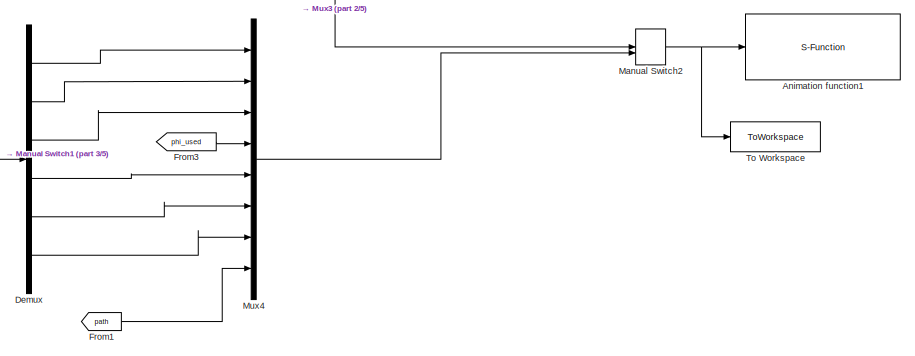
[diagram: root canvas - part 1/5, top right region]
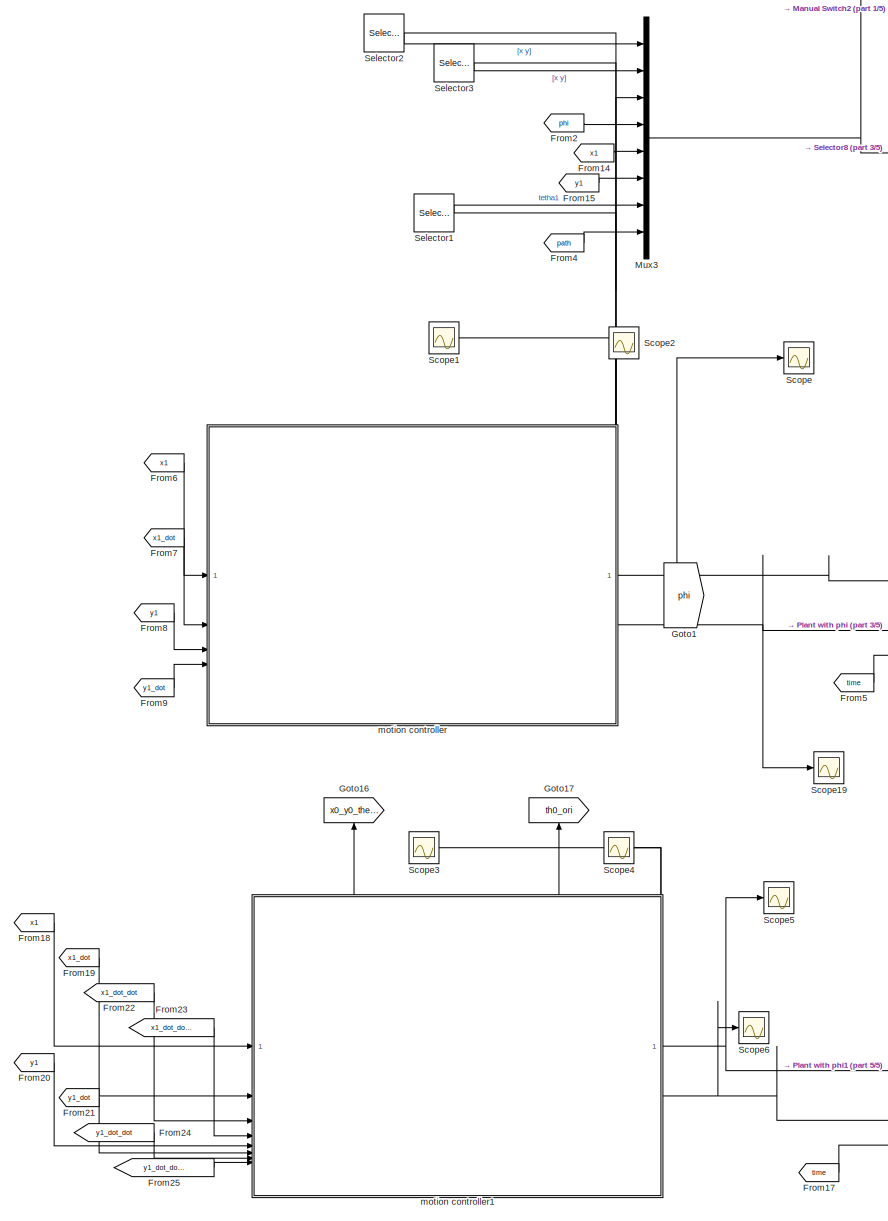
[diagram: root canvas - part 2/5, center side, full height]
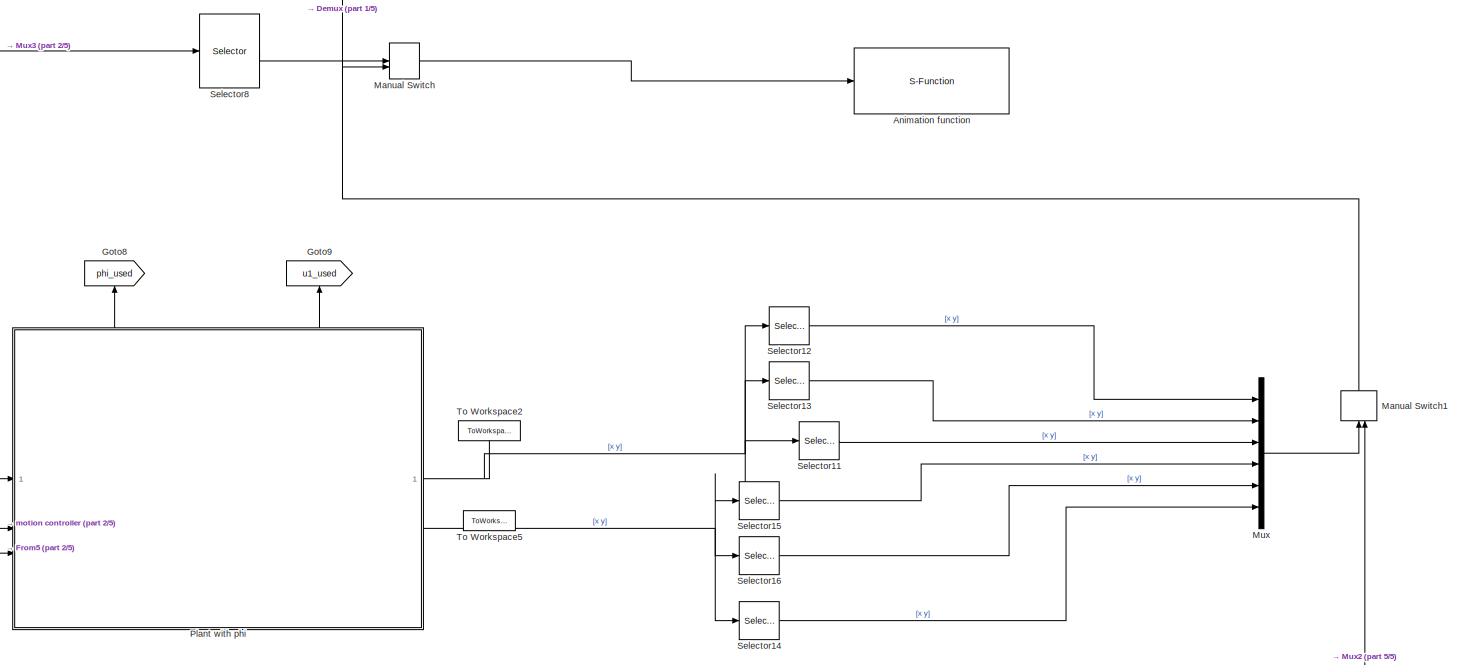
[diagram: root canvas - part 3/5, middle right region]
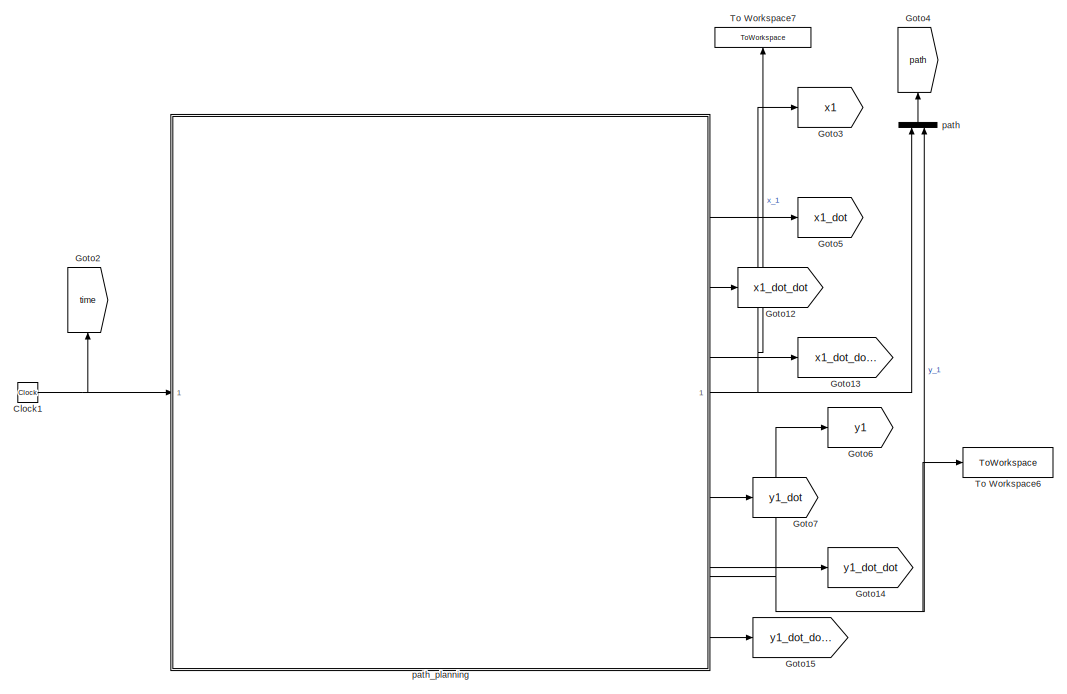
[diagram: root canvas - part 4/5, bottom left region]
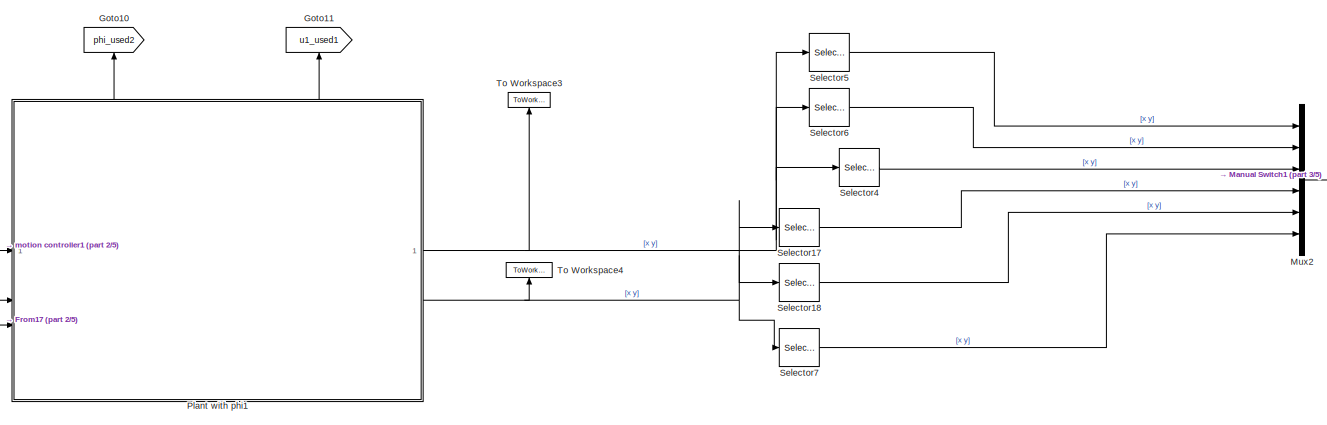
[diagram: root canvas - part 5/5, bottom right region]
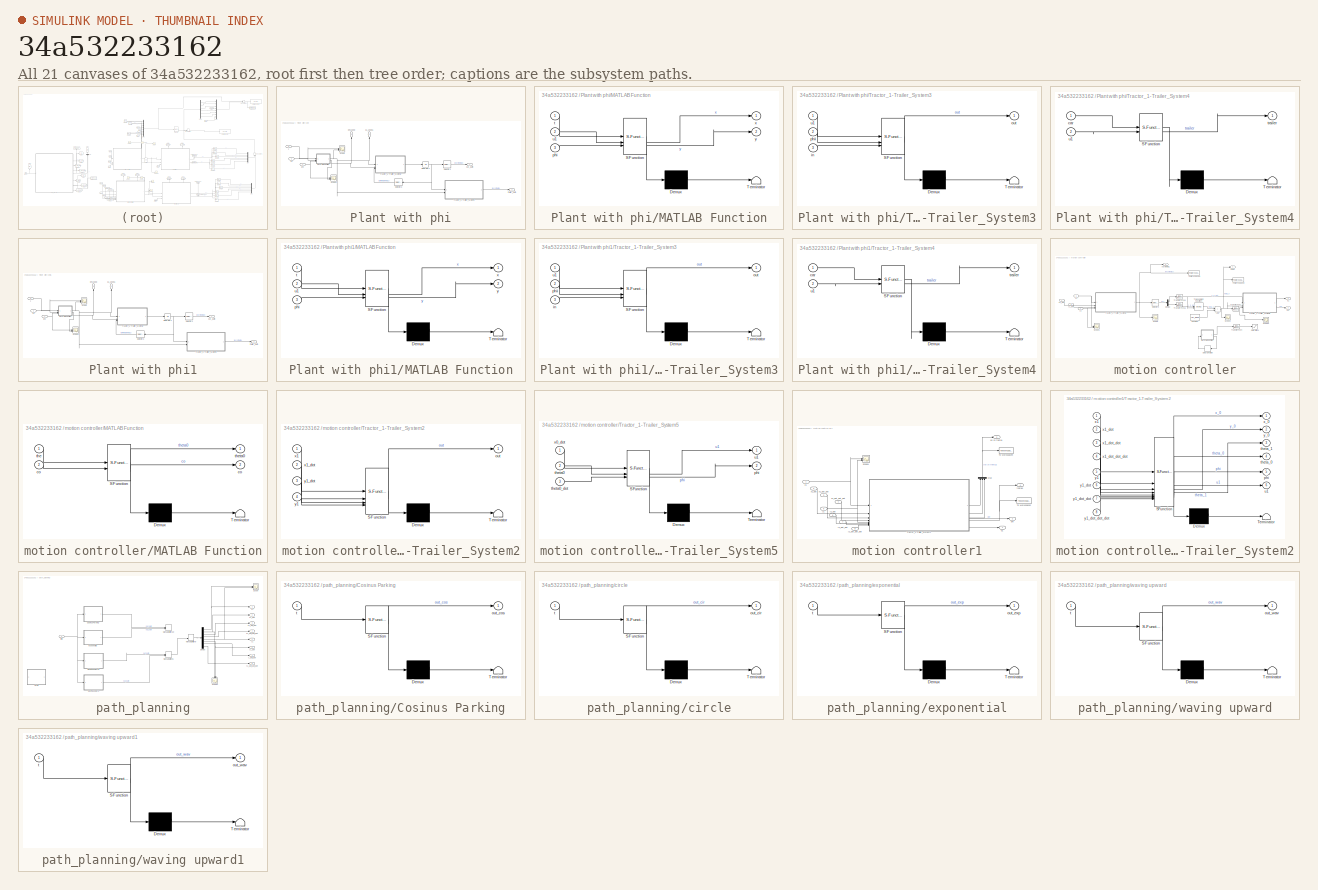
[diagram: thumbnail index - all 21 canvases of the model, root first then tree order]
MODEL slx_34a532233162
KIND model
CONFIG AbsTol = auto
CONFIG EnableMultiTasking = off
CONFIG FixedStep = 0.01
CONFIG InitFcn = d0 = 1;\nDt=0.01;\n\n%% if we want to "externalise" the trailer link from the car\na = 1.5;\n\n%% distance between car and trailer\nb = 2.5;\n\nd1=b;\n\ndelay = 0.01;\n\n%% delay with 0 signal before (to avoid instabilities before the "real" path following simulation")\ndel=2;\n\n%% delay to sub above to chose starting using real value\ndedel=1;\n\ny0 = 0;\nx0 = d1;\nco=0;\n\nthe_pre=0;\nthe_pre_pre=0;\nsdt=0.01;\n\nti_mod ...<+2035ch>
CONFIG MaxStep = auto
CONFIG MinStep = auto
CONFIG RelTol = 1e-3
CONFIG SampleTimeConstraint = Unconstrained
CONFIG SolverName = ode4
CONFIG StartTime = 0.01
CONFIG StopTime = 20
BLOCK [S-Function] Animation function
  Commented = on
  EnableBusSupport = off
  FunctionName = twowheeledrobotanim_trac
  SFcnIsStateOwnerBlock = off
  SFunctionDeploymentMode = off
BLOCK [S-Function] Animation function1
  EnableBusSupport = off
  FunctionName = carlikeanim_trailer
  SFcnIsStateOwnerBlock = off
  SFunctionDeploymentMode = off
BLOCK [Clock] Clock1
  Decimation = 1
BLOCK [Demux] Demux
  Outputs = 6
BLOCK [From] From1
  GotoTag = path
  NameLocation = top
BLOCK [From] From14
  GotoTag = x1
  NameLocation = top
BLOCK [From] From15
  GotoTag = y1
  NameLocation = top
BLOCK [From] From17
  GotoTag = time
  NameLocation = top
BLOCK [From] From18
  GotoTag = x1
  NameLocation = top
BLOCK [From] From19
  GotoTag = x1_dot
  NameLocation = top
BLOCK [From] From2
  GotoTag = phi
  NameLocation = top
BLOCK [From] From20
  GotoTag = y1
  NameLocation = top
BLOCK [From] From21
  GotoTag = y1_dot
  NameLocation = top
BLOCK [From] From22
  GotoTag = x1_dot_dot
  NameLocation = top
BLOCK [From] From23
  GotoTag = x1_dot_dot_dot
  NameLocation = top
BLOCK [From] From24
  GotoTag = y1_dot_dot
  NameLocation = top
BLOCK [From] From25
  GotoTag = y1_dot_dot_dot
  NameLocation = top
BLOCK [From] From3
  GotoTag = phi_used
  NameLocation = top
BLOCK [From] From4
  GotoTag = path
  NameLocation = top
BLOCK [From] From5
  GotoTag = time
  NameLocation = top
BLOCK [From] From6
  GotoTag = x1
  NameLocation = top
BLOCK [From] From7
  GotoTag = x1_dot
  NameLocation = top
BLOCK [From] From8
  GotoTag = y1
  NameLocation = top
BLOCK [From] From9
  GotoTag = y1_dot
  NameLocation = top
BLOCK [Goto] Goto1
  GotoTag = phi
  NameLocation = right
BLOCK [Goto] Goto10
  GotoTag = phi_used2
  NameLocation = right
BLOCK [Goto] Goto11
  GotoTag = u1_used1
  NameLocation = right
BLOCK [Goto] Goto12
  GotoTag = x1_dot_dot
BLOCK [Goto] Goto13
  GotoTag = x1_dot_dot_dot
BLOCK [Goto] Goto14
  GotoTag = y1_dot_dot
BLOCK [Goto] Goto15
  GotoTag = y1_dot_dot_dot
BLOCK [Goto] Goto16
  GotoTag = x0_y0_the1_ori
  NameLocation = right
BLOCK [Goto] Goto17
  GotoTag = th0_ori
  NameLocation = right
BLOCK [Goto] Goto2
  GotoTag = time
  NameLocation = right
BLOCK [Goto] Goto3
  GotoTag = x1
BLOCK [Goto] Goto4
  GotoTag = path
  NameLocation = right
BLOCK [Goto] Goto5
  GotoTag = x1_dot
BLOCK [Goto] Goto6
  GotoTag = y1
BLOCK [Goto] Goto7
  GotoTag = y1_dot
BLOCK [Goto] Goto8
  GotoTag = phi_used
  NameLocation = right
BLOCK [Goto] Goto9
  GotoTag = u1_used
  NameLocation = right
BLOCK [ManualSwitch] Manual Switch
  CurrentSetting = 0
BLOCK [ManualSwitch] Manual Switch1
  CurrentSetting = 0
  NameLocation = right
BLOCK [ManualSwitch] Manual Switch2
  CurrentSetting = 0
BLOCK [Mux] Mux
  DisplayOption = bar
  Inputs = 6
BLOCK [Mux] Mux2
  DisplayOption = bar
  Inputs = 6
BLOCK [Mux] Mux3
  DisplayOption = bar
  Inputs = 8
BLOCK [Mux] Mux4
  DisplayOption = bar
  Inputs = 8
BLOCK [SubSystem] Plant with phi
  PortSchema = {"entries":[{"content":{"sides":[{"content":{"connectorIds":["In1","In2","In3"]},"type":"ConnectorPlacement.EquallySpacedRectSide","uuid":"e7db4861-1c7b-44d0-8ae0-043891a2d65e"},{"content":{"connectorIds":["Out1","Out2"],"side":"RIGHT"},"type":"ConnectorPlacement.EquallySpacedRectSide","uuid":"ca6953ca-f3e9-441a-9b66-bf77f2babfba"},{"content":{"connectorIds":["Out3","Out4"],"side":"TOP"},"type":"C...<+272ch>
BLOCK [Integrator] Plant with phi/Integrator1
  InitialCondition = [x0_init;y0_init;theta0_init;theta1_init]
BLOCK [SubSystem] Plant with phi/MATLAB Function
  ErrorFcn = Stateflow.Translate.translate
  LibrarySourceBlock = simulink/User-Defined\nFunctions/MATLAB Function
  PermitHierarchicalResolution = ExplicitOnly
  SFBlockType = MATLAB Function
  TreatAsAtomicUnit = on
BLOCK [Demux] Plant with phi/MATLAB Function/ Demux 
  Outputs = 1
BLOCK [S-Function] Plant with phi/MATLAB Function/ SFunction 
  EnableBusSupport = on
  FunctionName = sf_sfun
  Parameters = dedel,del,for_back
  PortCounts = [3 3]
  SFcnIsStateOwnerBlock = off
  SFunctionDeploymentMode = off
  Tag = Stateflow S-Function 6
BLOCK [Terminator] Plant with phi/MATLAB Function/ Terminator 
BLOCK [Inport] Plant with phi/MATLAB Function/phi
  Port = 3
BLOCK [Inport] Plant with phi/MATLAB Function/t
BLOCK [Inport] Plant with phi/MATLAB Function/u1
  Port = 2
BLOCK [Outport] Plant with phi/MATLAB Function/x
BLOCK [Outport] Plant with phi/MATLAB Function/y
  Port = 2
BLOCK [Scope] Plant with phi/Scope
  Floating = off
  NumInputPorts = 2
  ScopeSpecificationString = Simulink.scopes.TimeScopeBlockCfg('CurrentConfiguration', extmgr.ConfigurationSet(extmgr.Configuration('Core','General UI',true),extmgr.Configuration('Core','Source UI',true),extmgr.Configuration('Sources','WiredSimulink',true,'DataLoggingVariableName','ScopeData3'),extmgr.Configuration('Visuals','Time Domain',true,'SerializedDisplays',{struct('MinYLimReal','-4.32676','MaxYLimReal','0.37381','YLab...<+1425ch>
BLOCK [Scope] Plant with phi/Scope1
  Floating = off
  NumInputPorts = 2
  ScopeSpecificationString = Simulink.scopes.TimeScopeBlockCfg('CurrentConfiguration', extmgr.ConfigurationSet(extmgr.Configuration('Core','General UI',true),extmgr.Configuration('Core','Source UI',true),extmgr.Configuration('Sources','WiredSimulink',true,'DataLoggingVariableName','ScopeData4'),extmgr.Configuration('Visuals','Time Domain',true,'SerializedDisplays',{struct('MinYLimReal','-3.92627','MaxYLimReal','3.92691','YLab...<+1454ch>
BLOCK [Selector] Plant with phi/Selector3
  IndexOptions = Index vector (dialog)
  Indices = [3 4]
  InputPortWidth = 4
  OutputSizes = 1
BLOCK [Selector] Plant with phi/Selector4
  IndexOptions = Index vector (dialog)
  Indices = [1 2 3]
  InputPortWidth = 4
  OutputSizes = 1
BLOCK [SubSystem] Plant with phi/Tractor_1-Trailer_System3
  ErrorFcn = Stateflow.Translate.translate
  PermitHierarchicalResolution = ExplicitOnly
  SFBlockType = MATLAB Function
  TreatAsAtomicUnit = on
BLOCK [Demux] Plant with phi/Tractor_1-Trailer_System3/ Demux 
  Outputs = 1
BLOCK [S-Function] Plant with phi/Tractor_1-Trailer_System3/ SFunction 
  EnableBusSupport = on
  FunctionName = sf_sfun
  Parameters = a,b,d0,d1
  PortCounts = [3 2]
  SFcnIsStateOwnerBlock = off
  SFunctionDeploymentMode = off
  Tag = Stateflow S-Function 4
BLOCK [Terminator] Plant with phi/Tractor_1-Trailer_System3/ Terminator 
BLOCK [Inport] Plant with phi/Tractor_1-Trailer_System3/in
  Port = 3
BLOCK [Outport] Plant with phi/Tractor_1-Trailer_System3/out
BLOCK [Inport] Plant with phi/Tractor_1-Trailer_System3/phii
  Port = 2
BLOCK [Inport] Plant with phi/Tractor_1-Trailer_System3/u1
BLOCK [SubSystem] Plant with phi/Tractor_1-Trailer_System4
  ErrorFcn = Stateflow.Translate.translate
  PermitHierarchicalResolution = ExplicitOnly
  SFBlockType = MATLAB Function
  TreatAsAtomicUnit = on
BLOCK [Demux] Plant with phi/Tractor_1-Trailer_System4/ Demux 
  Outputs = 1
BLOCK [S-Function] Plant with phi/Tractor_1-Trailer_System4/ SFunction 
  EnableBusSupport = on
  FunctionName = sf_sfun
  Parameters = d1,for_back
  PortCounts = [2 2]
  SFcnIsStateOwnerBlock = off
  SFunctionDeploymentMode = off
  Tag = Stateflow S-Function 5
BLOCK [Terminator] Plant with phi/Tractor_1-Trailer_System4/ Terminator 
BLOCK [Inport] Plant with phi/Tractor_1-Trailer_System4/car
BLOCK [Outport] Plant with phi/Tractor_1-Trailer_System4/trailer
BLOCK [Inport] Plant with phi/Tractor_1-Trailer_System4/u1
  Port = 2
BLOCK [Outport] Plant with phi/car_path
BLOCK [Inport] Plant with phi/phi
  Port = 2
BLOCK [Outport] Plant with phi/phi_used
  NameLocation = right
  Port = 3
BLOCK [Inport] Plant with phi/t
  Port = 3
BLOCK [Outport] Plant with phi/trailer_path
  Port = 2
BLOCK [Inport] Plant with phi/u1
BLOCK [Outport] Plant with phi/u1_used1
  NameLocation = right
  Port = 4
BLOCK [SubSystem] Plant with phi1
  PortSchema = {"entries":[{"content":{"sides":[{"content":{"connectorIds":["In1","In2","In3"]},"type":"ConnectorPlacement.EquallySpacedRectSide","uuid":"e7db4861-1c7b-44d0-8ae0-043891a2d65e"},{"content":{"connectorIds":["Out1","Out2"],"side":"RIGHT"},"type":"ConnectorPlacement.EquallySpacedRectSide","uuid":"ca6953ca-f3e9-441a-9b66-bf77f2babfba"},{"content":{"connectorIds":["Out3","Out4"],"side":"TOP"},"type":"C...<+272ch>
BLOCK [Integrator] Plant with phi1/Integrator1
  InitialCondition = [x0_init;y0_init;theta0_init;theta1_init]
BLOCK [SubSystem] Plant with phi1/MATLAB Function
  ErrorFcn = Stateflow.Translate.translate
  LibrarySourceBlock = simulink/User-Defined\nFunctions/MATLAB Function
  PermitHierarchicalResolution = ExplicitOnly
  SFBlockType = MATLAB Function
  TreatAsAtomicUnit = on
BLOCK [Demux] Plant with phi1/MATLAB Function/ Demux 
  Outputs = 1
BLOCK [S-Function] Plant with phi1/MATLAB Function/ SFunction 
  EnableBusSupport = on
  FunctionName = sf_sfun
  Parameters = dedel,del,for_back
  PortCounts = [3 3]
  SFcnIsStateOwnerBlock = off
  SFunctionDeploymentMode = off
  Tag = Stateflow S-Function 1
BLOCK [Terminator] Plant with phi1/MATLAB Function/ Terminator 
BLOCK [Inport] Plant with phi1/MATLAB Function/phi
  Port = 3
BLOCK [Inport] Plant with phi1/MATLAB Function/t
BLOCK [Inport] Plant with phi1/MATLAB Function/u1
  Port = 2
BLOCK [Outport] Plant with phi1/MATLAB Function/x
BLOCK [Outport] Plant with phi1/MATLAB Function/y
  Port = 2
BLOCK [Scope] Plant with phi1/Scope
  Floating = off
  NumInputPorts = 2
  ScopeSpecificationString = Simulink.scopes.TimeScopeBlockCfg('CurrentConfiguration', extmgr.ConfigurationSet(extmgr.Configuration('Core','General UI',true),extmgr.Configuration('Core','Source UI',true),extmgr.Configuration('Sources','WiredSimulink',true,'DataLoggingVariableName','ScopeData3'),extmgr.Configuration('Visuals','Time Domain',true,'SerializedDisplays',{struct('MinYLimReal','-4.32676','MaxYLimReal','0.37381','YLab...<+1425ch>
BLOCK [Scope] Plant with phi1/Scope1
  Floating = off
  NumInputPorts = 2
  ScopeSpecificationString = Simulink.scopes.TimeScopeBlockCfg('CurrentConfiguration', extmgr.ConfigurationSet(extmgr.Configuration('Core','General UI',true),extmgr.Configuration('Core','Source UI',true),extmgr.Configuration('Sources','WiredSimulink',true,'DataLoggingVariableName','ScopeData4'),extmgr.Configuration('Visuals','Time Domain',true,'SerializedDisplays',{struct('MinYLimReal','-3.92627','MaxYLimReal','3.92691','YLab...<+1454ch>
BLOCK [Selector] Plant with phi1/Selector3
  IndexOptions = Index vector (dialog)
  Indices = [3 4]
  InputPortWidth = 4
  OutputSizes = 1
BLOCK [Selector] Plant with phi1/Selector4
  IndexOptions = Index vector (dialog)
  Indices = [1 2 3]
  InputPortWidth = 4
  OutputSizes = 1
BLOCK [SubSystem] Plant with phi1/Tractor_1-Trailer_System3
  ErrorFcn = Stateflow.Translate.translate
  PermitHierarchicalResolution = ExplicitOnly
  SFBlockType = MATLAB Function
  TreatAsAtomicUnit = on
BLOCK [Demux] Plant with phi1/Tractor_1-Trailer_System3/ Demux 
  Outputs = 1
BLOCK [S-Function] Plant with phi1/Tractor_1-Trailer_System3/ SFunction 
  EnableBusSupport = on
  FunctionName = sf_sfun
  Parameters = a,b,d0,d1
  PortCounts = [3 2]
  SFcnIsStateOwnerBlock = off
  SFunctionDeploymentMode = off
  Tag = Stateflow S-Function 3
BLOCK [Terminator] Plant with phi1/Tractor_1-Trailer_System3/ Terminator 
BLOCK [Inport] Plant with phi1/Tractor_1-Trailer_System3/in
  Port = 3
BLOCK [Outport] Plant with phi1/Tractor_1-Trailer_System3/out
BLOCK [Inport] Plant with phi1/Tractor_1-Trailer_System3/phii
  Port = 2
BLOCK [Inport] Plant with phi1/Tractor_1-Trailer_System3/u1
BLOCK [SubSystem] Plant with phi1/Tractor_1-Trailer_System4
  ErrorFcn = Stateflow.Translate.translate
  PermitHierarchicalResolution = ExplicitOnly
  SFBlockType = MATLAB Function
  TreatAsAtomicUnit = on
BLOCK [Demux] Plant with phi1/Tractor_1-Trailer_System4/ Demux 
  Outputs = 1
BLOCK [S-Function] Plant with phi1/Tractor_1-Trailer_System4/ SFunction 
  EnableBusSupport = on
  FunctionName = sf_sfun
  Parameters = d1,for_back
  PortCounts = [2 2]
  SFcnIsStateOwnerBlock = off
  SFunctionDeploymentMode = off
  Tag = Stateflow S-Function 7
BLOCK [Terminator] Plant with phi1/Tractor_1-Trailer_System4/ Terminator 
BLOCK [Inport] Plant with phi1/Tractor_1-Trailer_System4/car
BLOCK [Outport] Plant with phi1/Tractor_1-Trailer_System4/trailer
BLOCK [Inport] Plant with phi1/Tractor_1-Trailer_System4/u1
  Port = 2
BLOCK [Outport] Plant with phi1/car_path
BLOCK [Inport] Plant with phi1/phi
  Port = 2
BLOCK [Outport] Plant with phi1/phi_used
  NameLocation = right
  Port = 3
BLOCK [Inport] Plant with phi1/t
  Port = 3
BLOCK [Outport] Plant with phi1/trailer_path
  Port = 2
BLOCK [Inport] Plant with phi1/u1
BLOCK [Outport] Plant with phi1/u1_used1
  NameLocation = right
  Port = 4
BLOCK [Scope] Scope
  Floating = off
  NumInputPorts = 1
  ScopeSpecificationString = Simulink.scopes.TimeScopeBlockCfg('CurrentConfiguration', extmgr.ConfigurationSet(extmgr.Configuration('Core','General UI',true),extmgr.Configuration('Core','Source UI',true),extmgr.Configuration('Sources','WiredSimulink',true,'DataLoggingVariableName','ScopeData1'),extmgr.Configuration('Visuals','Time Domain',true,'SerializedDisplays',{struct('MinYLimReal','0.82065','MaxYLimReal','3.05138','YLabe...<+1421ch>
BLOCK [Scope] Scope1
  Floating = off
  NumInputPorts = 1
  ScopeSpecificationString = Simulink.scopes.TimeScopeBlockCfg('CurrentConfiguration', extmgr.ConfigurationSet(extmgr.Configuration('Core','General UI',true),extmgr.Configuration('Core','Source UI',true),extmgr.Configuration('Sources','WiredSimulink',true,'DataLoggingVariableName','ScopeData1'),extmgr.Configuration('Visuals','Time Domain',true,'SerializedDisplays',{struct('MinYLimReal','-22.97516','MaxYLimReal','8.67955','YLa...<+1497ch>
BLOCK [Scope] Scope19
  Floating = off
  NumInputPorts = 1
  ScopeSpecificationString = Simulink.scopes.TimeScopeBlockCfg('CurrentConfiguration', extmgr.ConfigurationSet(extmgr.Configuration('Core','General UI',true),extmgr.Configuration('Core','Source UI',true),extmgr.Configuration('Sources','WiredSimulink',true,'DataLoggingVariableName','ScopeData6'),extmgr.Configuration('Visuals','Time Domain',true,'SerializedDisplays',{struct('MinYLimReal','-3.92522','MaxYLimReal','3.92679','YLab...<+1424ch>
BLOCK [Scope] Scope2
  Floating = off
  NumInputPorts = 1
  ScopeSpecificationString = Simulink.scopes.TimeScopeBlockCfg('CurrentConfiguration', extmgr.ConfigurationSet(extmgr.Configuration('Core','General UI',true),extmgr.Configuration('Core','Source UI',true),extmgr.Configuration('Sources','WiredSimulink',true,'DataLoggingVariableName','ScopeData10'),extmgr.Configuration('Visuals','Time Domain',true,'SerializedDisplays',{struct('MinYLimReal','-3.56558','MaxYLimReal','0.70053','YLa...<+1415ch>
BLOCK [Scope] Scope3
  Floating = off
  NumInputPorts = 1
  ScopeSpecificationString = Simulink.scopes.TimeScopeBlockCfg('CurrentConfiguration', extmgr.ConfigurationSet(extmgr.Configuration('Core','General UI',true),extmgr.Configuration('Core','Source UI',true),extmgr.Configuration('Sources','WiredSimulink',true,'DataLoggingVariableName','ScopeData1'),extmgr.Configuration('Visuals','Time Domain',true,'SerializedDisplays',{struct('MinYLimReal','-22.99458','MaxYLimReal','8.68171','YLa...<+1499ch>
BLOCK [Scope] Scope4
  Floating = off
  NumInputPorts = 1
  ScopeSpecificationString = Simulink.scopes.TimeScopeBlockCfg('CurrentConfiguration', extmgr.ConfigurationSet(extmgr.Configuration('Core','General UI',true),extmgr.Configuration('Core','Source UI',true),extmgr.Configuration('Sources','WiredSimulink',true,'DataLoggingVariableName','ScopeData2'),extmgr.Configuration('Visuals','Time Domain',true,'SerializedDisplays',{struct('MinYLimReal','-2.61444','MaxYLimReal','0.5949','YLabe...<+1408ch>
BLOCK [Scope] Scope5
  Floating = off
  NumInputPorts = 1
  ScopeSpecificationString = Simulink.scopes.TimeScopeBlockCfg('CurrentConfiguration', extmgr.ConfigurationSet(extmgr.Configuration('Core','General UI',true),extmgr.Configuration('Core','Source UI',true),extmgr.Configuration('Sources','WiredSimulink',true,'DataLoggingVariableName','ScopeData3'),extmgr.Configuration('Visuals','Time Domain',true,'SerializedDisplays',{struct('MinYLimReal','1.91634','MaxYLimReal','2.75293','YLabe...<+1403ch>
BLOCK [Scope] Scope6
  Floating = off
  NumInputPorts = 1
  ScopeSpecificationString = Simulink.scopes.TimeScopeBlockCfg('CurrentConfiguration', extmgr.ConfigurationSet(extmgr.Configuration('Core','General UI',true),extmgr.Configuration('Core','Source UI',true),extmgr.Configuration('Sources','WiredSimulink',true,'DataLoggingVariableName','ScopeData4'),extmgr.Configuration('Visuals','Time Domain',true,'SerializedDisplays',{struct('MinYLimReal','-3.27529','MaxYLimReal','0.6516','YLabe...<+1431ch>
BLOCK [Selector] Selector1
  IndexOptions = Index vector (dialog)
  Indices = [3]
  InputPortWidth = 3
  OutputSizes = 1
BLOCK [Selector] Selector11
  IndexOptions = Index vector (dialog)
  Indices = [3]
  InputPortWidth = 3
  OutputSizes = 1
BLOCK [Selector] Selector12
  IndexOptions = Index vector (dialog)
  Indices = [1]
  InputPortWidth = 3
  NameLocation = top
  OutputSizes = 1
BLOCK [Selector] Selector13
  IndexOptions = Index vector (dialog)
  Indices = [2]
  InputPortWidth = 3
  OutputSizes = 1
BLOCK [Selector] Selector14
  IndexOptions = Index vector (dialog)
  Indices = [3]
  InputPortWidth = 3
  OutputSizes = 1
BLOCK [Selector] Selector15
  IndexOptions = Index vector (dialog)
  Indices = [1]
  InputPortWidth = 3
  OutputSizes = 1
BLOCK [Selector] Selector16
  IndexOptions = Index vector (dialog)
  Indices = [2]
  InputPortWidth = 3
  OutputSizes = 1
BLOCK [Selector] Selector17
  IndexOptions = Index vector (dialog)
  Indices = [1]
  InputPortWidth = 3
  OutputSizes = 1
BLOCK [Selector] Selector18
  IndexOptions = Index vector (dialog)
  Indices = [2]
  InputPortWidth = 3
  OutputSizes = 1
BLOCK [Selector] Selector2
  IndexOptions = Index vector (dialog)
  Indices = [1]
  InputPortWidth = 3
  OutputSizes = 1
BLOCK [Selector] Selector3
  IndexOptions = Index vector (dialog)
  Indices = [2]
  InputPortWidth = 3
  OutputSizes = 1
BLOCK [Selector] Selector4
  IndexOptions = Index vector (dialog)
  Indices = [3]
  InputPortWidth = 3
  OutputSizes = 1
BLOCK [Selector] Selector5
  IndexOptions = Index vector (dialog)
  Indices = [1]
  InputPortWidth = 3
  OutputSizes = 1
BLOCK [Selector] Selector6
  IndexOptions = Index vector (dialog)
  Indices = [2]
  InputPortWidth = 3
  OutputSizes = 1
BLOCK [Selector] Selector7
  IndexOptions = Index vector (dialog)
  Indices = [3]
  InputPortWidth = 3
  OutputSizes = 1
BLOCK [Selector] Selector8
  IndexOptions = Index vector (dialog)
  Indices = [1 2 3 5 6 7]
  InputPortWidth = 9
  OutputSizes = 1
BLOCK [ToWorkspace] To Workspace
  FixptAsFi = on
  MaxDataPoints = inf
  SampleTime = -1
  SaveFormat = Timeseries
  VariableName = simout
BLOCK [ToWorkspace] To Workspace2
  FixptAsFi = on
  MaxDataPoints = inf
  NameLocation = left
  SampleTime = -1
  SaveFormat = Timeseries
  VariableName = tr_tt
BLOCK [ToWorkspace] To Workspace3
  FixptAsFi = on
  MaxDataPoints = inf
  NameLocation = right
  SampleTime = -1
  SaveFormat = Timeseries
  VariableName = tr_tt4
BLOCK [ToWorkspace] To Workspace4
  FixptAsFi = on
  MaxDataPoints = inf
  NameLocation = right
  SampleTime = -1
  SaveFormat = Timeseries
  VariableName = tr_tt5
BLOCK [ToWorkspace] To Workspace5
  FixptAsFi = on
  MaxDataPoints = inf
  NameLocation = right
  SampleTime = -1
  SaveFormat = Timeseries
  VariableName = tr_tt1
BLOCK [ToWorkspace] To Workspace6
  FixptAsFi = on
  MaxDataPoints = inf
  SampleTime = -1
  Save2DSignal = 2-D array (concatenate along first dimension)
  SaveFormat = Timeseries
  VariableName = y_ori_trailer
BLOCK [ToWorkspace] To Workspace7
  FixptAsFi = on
  MaxDataPoints = inf
  NameLocation = right
  SampleTime = -1
  Save2DSignal = 2-D array (concatenate along first dimension)
  SaveFormat = Timeseries
  VariableName = x_ori_trailer
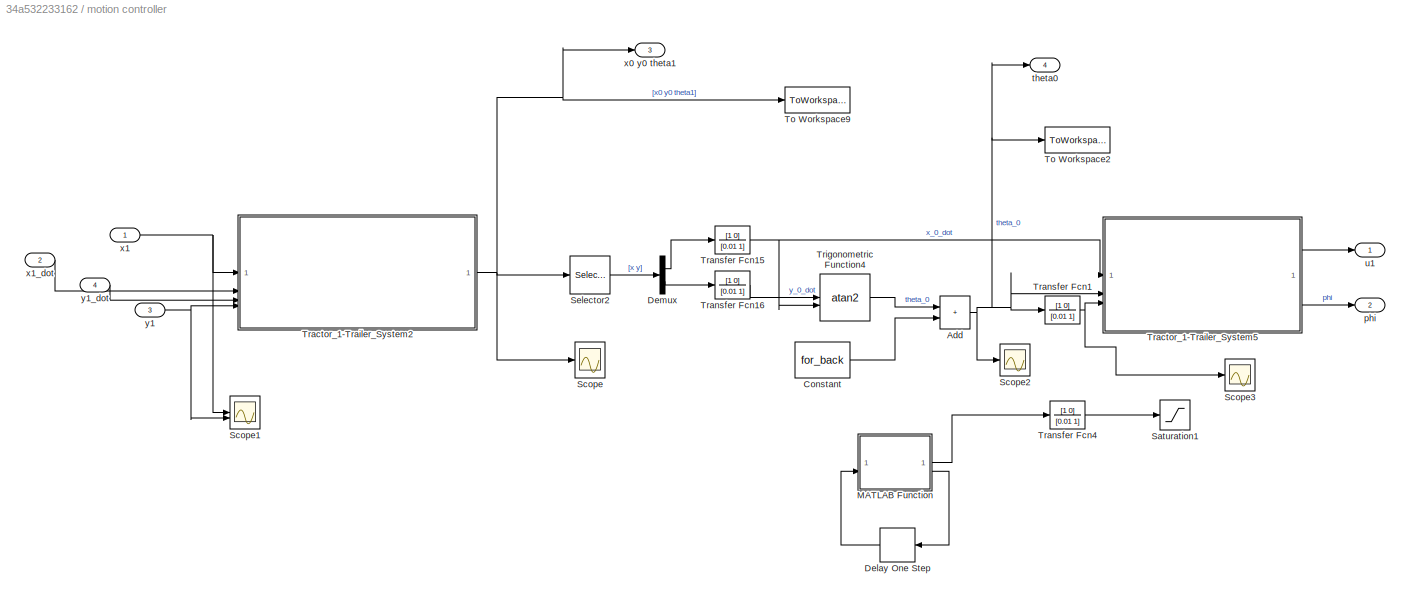
BLOCK [SubSystem] motion controller
  PortSchema = {"entries":[{"content":{"sides":[{"content":{"connectorIds":["In1","In2","In3","In4"]},"type":"ConnectorPlacement.EquallySpacedRectSide","uuid":"11bc3301-7ab6-4d38-8445-7de1e6050525"},{"content":{"connectorIds":["Out1","Out2"],"side":"RIGHT"},"type":"ConnectorPlacement.EquallySpacedRectSide","uuid":"374bee85-8743-45f2-a60a-268bfdaad2ec"},{"content":{"connectorIds":["Out3","Out4"],"side":"TOP"},"ty...<+278ch>
BLOCK [Sum] motion controller/Add
  IconShape = rectangular
BLOCK [Constant] motion controller/Constant
  Value = for_back
BLOCK [Delay] motion controller/Delay One Step
  Commented = on
  DelayLength = 1
  InputPortMap = u0
  NameLocation = top
BLOCK [Demux] motion controller/Demux
  Outputs = 2
BLOCK [SubSystem] motion controller/MATLAB Function
  Commented = on
  ErrorFcn = Stateflow.Translate.translate
  LibrarySourceBlock = simulink/User-Defined\nFunctions/MATLAB Function
  PermitHierarchicalResolution = ExplicitOnly
  SFBlockType = MATLAB Function
  TreatAsAtomicUnit = on
BLOCK [Demux] motion controller/MATLAB Function/ Demux 
  Outputs = 1
BLOCK [S-Function] motion controller/MATLAB Function/ SFunction 
  EnableBusSupport = on
  FunctionName = sf_sfun
  PortCounts = [2 3]
  SFcnIsStateOwnerBlock = off
  SFunctionDeploymentMode = off
  Tag = Stateflow S-Function 16
BLOCK [Terminator] motion controller/MATLAB Function/ Terminator 
BLOCK [Outport] motion controller/MATLAB Function/co
  Port = 2
BLOCK [Inport] motion controller/MATLAB Function/co 
  Port = 2
BLOCK [Inport] motion controller/MATLAB Function/the
BLOCK [Outport] motion controller/MATLAB Function/theta0
BLOCK [Saturate] motion controller/Saturation1
  Commented = on
  LowerLimit = -pi/4
  UpperLimit = pi/4
BLOCK [Scope] motion controller/Scope
  Floating = off
  NumInputPorts = 1
  ScopeSpecificationString = Simulink.scopes.TimeScopeBlockCfg('CurrentConfiguration', extmgr.ConfigurationSet(extmgr.Configuration('Core','General UI',true),extmgr.Configuration('Core','Source UI',true),extmgr.Configuration('Sources','WiredSimulink',true,'DataLoggingVariableName','ScopeData1'),extmgr.Configuration('Visuals','Time Domain',true,'SerializedDisplays',{struct('MinYLimReal','-6.28319','MaxYLimReal','25.13274','YLa...<+1486ch>
BLOCK [Scope] motion controller/Scope1
  Floating = off
  NumInputPorts = 2
  ScopeSpecificationString = Simulink.scopes.TimeScopeBlockCfg('CurrentConfiguration', extmgr.ConfigurationSet(extmgr.Configuration('Core','General UI',true),extmgr.Configuration('Core','Source UI',true),extmgr.Configuration('Sources','WiredSimulink',true,'DataLoggingVariableName','ScopeData2'),extmgr.Configuration('Visuals','Time Domain',true,'SerializedDisplays',{struct('MinYLimReal','-2.5','MaxYLimReal','22.5','YLabelReal'...<+1415ch>
BLOCK [Scope] motion controller/Scope2
  Floating = off
  NumInputPorts = 1
  ScopeSpecificationString = Simulink.scopes.TimeScopeBlockCfg('CurrentConfiguration', extmgr.ConfigurationSet(extmgr.Configuration('Core','General UI',true),extmgr.Configuration('Core','Source UI',true),extmgr.Configuration('Sources','WiredSimulink',true,'DataLoggingVariableName','ScopeData3'),extmgr.Configuration('Visuals','Time Domain',true,'SerializedDisplays',{struct('MinYLimReal','-0.65308','MaxYLimReal','5.87772','YLab...<+1420ch>
BLOCK [Scope] motion controller/Scope3
  Floating = off
  NumInputPorts = 1
  ScopeSpecificationString = Simulink.scopes.TimeScopeBlockCfg('CurrentConfiguration', extmgr.ConfigurationSet(extmgr.Configuration('Core','General UI',true),extmgr.Configuration('Core','Source UI',true),extmgr.Configuration('Sources','WiredSimulink',true,'DataLoggingVariableName','ScopeData4'),extmgr.Configuration('Visuals','Time Domain',true,'SerializedDisplays',{struct('MinYLimReal','-2.36013','MaxYLimReal','2.67437','YLab...<+1416ch>
BLOCK [Selector] motion controller/Selector2
  IndexOptions = Index vector (dialog)
  Indices = [1 2]
  InputPortWidth = 3
  OutputSizes = 1
BLOCK [ToWorkspace] motion controller/To Workspace2
  FixptAsFi = on
  MaxDataPoints = inf
  SampleTime = -1
  SaveFormat = Timeseries
  VariableName = tr_tt7
BLOCK [ToWorkspace] motion controller/To Workspace9
  FixptAsFi = on
  MaxDataPoints = inf
  SampleTime = -1
  SaveFormat = Timeseries
  VariableName = tr_tt2
BLOCK [SubSystem] motion controller/Tractor_1-Trailer_System2
  ErrorFcn = Stateflow.Translate.translate
  PermitHierarchicalResolution = ExplicitOnly
  SFBlockType = MATLAB Function
  TreatAsAtomicUnit = on
BLOCK [Demux] motion controller/Tractor_1-Trailer_System2/ Demux 
  Outputs = 1
BLOCK [S-Function] motion controller/Tractor_1-Trailer_System2/ SFunction 
  EnableBusSupport = on
  FunctionName = sf_sfun
  Parameters = d1,for_back
  PortCounts = [4 2]
  SFcnIsStateOwnerBlock = off
  SFunctionDeploymentMode = off
  Tag = Stateflow S-Function 11
BLOCK [Terminator] motion controller/Tractor_1-Trailer_System2/ Terminator 
BLOCK [Outport] motion controller/Tractor_1-Trailer_System2/out
BLOCK [Inport] motion controller/Tractor_1-Trailer_System2/x1
BLOCK [Inport] motion controller/Tractor_1-Trailer_System2/x1_dot
  Port = 2
BLOCK [Inport] motion controller/Tractor_1-Trailer_System2/y1
  Port = 4
BLOCK [Inport] motion controller/Tractor_1-Trailer_System2/y1_dot
  Port = 3
BLOCK [SubSystem] motion controller/Tractor_1-Trailer_System5
  ErrorFcn = Stateflow.Translate.translate
  PermitHierarchicalResolution = ExplicitOnly
  SFBlockType = MATLAB Function
  TreatAsAtomicUnit = on
BLOCK [Demux] motion controller/Tractor_1-Trailer_System5/ Demux 
  Outputs = 1
BLOCK [S-Function] motion controller/Tractor_1-Trailer_System5/ SFunction 
  EnableBusSupport = on
  FunctionName = sf_sfun
  Parameters = d0
  PortCounts = [3 3]
  SFcnIsStateOwnerBlock = off
  SFunctionDeploymentMode = off
  Tag = Stateflow S-Function 14
BLOCK [Terminator] motion controller/Tractor_1-Trailer_System5/ Terminator 
BLOCK [Outport] motion controller/Tractor_1-Trailer_System5/phi
  Port = 2
BLOCK [Inport] motion controller/Tractor_1-Trailer_System5/theta0
  Port = 2
BLOCK [Inport] motion controller/Tractor_1-Trailer_System5/theta0_dot
  Port = 3
BLOCK [Outport] motion controller/Tractor_1-Trailer_System5/u1
BLOCK [Inport] motion controller/Tractor_1-Trailer_System5/x0_dot
BLOCK [TransferFcn] motion controller/Transfer Fcn1
  Denominator = [0.01 1]
  Numerator = [1 0]
BLOCK [TransferFcn] motion controller/Transfer Fcn15
  Denominator = [0.01 1]
  Numerator = [1 0]
BLOCK [TransferFcn] motion controller/Transfer Fcn16
  Denominator = [0.01 1]
  Numerator = [1 0]
BLOCK [TransferFcn] motion controller/Transfer Fcn4
  Commented = on
  Denominator = [0.01 1]
  Numerator = [1 0]
BLOCK [Trigonometry] motion controller/Trigonometric Function4
  Operator = atan2
BLOCK [Outport] motion controller/phi
  Port = 2
BLOCK [Outport] motion controller/theta0
  Port = 4
BLOCK [Outport] motion controller/u1
BLOCK [Outport] motion controller/x0 y0 theta1
  Port = 3
BLOCK [Inport] motion controller/x1
BLOCK [Inport] motion controller/x1_dot
  Port = 2
BLOCK [Inport] motion controller/y1
  Port = 3
BLOCK [Inport] motion controller/y1_dot
  Port = 4
BLOCK [SubSystem] motion controller1
  PortSchema = {"entries":[{"content":{"sides":[{"content":{"connectorIds":["In1","In2","In3","In4","In5","In6","In7","In8"]},"type":"ConnectorPlacement.EquallySpacedRectSide","uuid":"11bc3301-7ab6-4d38-8445-7de1e6050525"},{"content":{"connectorIds":["Out1","Out2"],"side":"RIGHT"},"type":"ConnectorPlacement.EquallySpacedRectSide","uuid":"374bee85-8743-45f2-a60a-268bfdaad2ec"},{"content":{"connectorIds":["Out3","...<+302ch>
BLOCK [Mux] motion controller1/Mux
  DisplayOption = bar
  Inputs = 3
  NameLocation = right
BLOCK [Scope] motion controller1/Scope1
  Floating = off
  NumInputPorts = 2
  ScopeSpecificationString = Simulink.scopes.TimeScopeBlockCfg('CurrentConfiguration', extmgr.ConfigurationSet(extmgr.Configuration('Core','General UI',true),extmgr.Configuration('Core','Source UI',true),extmgr.Configuration('Sources','WiredSimulink',true,'DataLoggingVariableName','ScopeData2'),extmgr.Configuration('Visuals','Time Domain',true,'SerializedDisplays',{struct('MinYLimReal','-2.5','MaxYLimReal','22.5','YLabelReal'...<+1415ch>
BLOCK [ToWorkspace] motion controller1/To Workspace2
  FixptAsFi = on
  MaxDataPoints = inf
  SampleTime = -1
  SaveFormat = Timeseries
  VariableName = tr_th0
BLOCK [ToWorkspace] motion controller1/To Workspace9
  FixptAsFi = on
  MaxDataPoints = inf
  SampleTime = -1
  SaveFormat = Timeseries
  VariableName = tr_x0_y0_th1
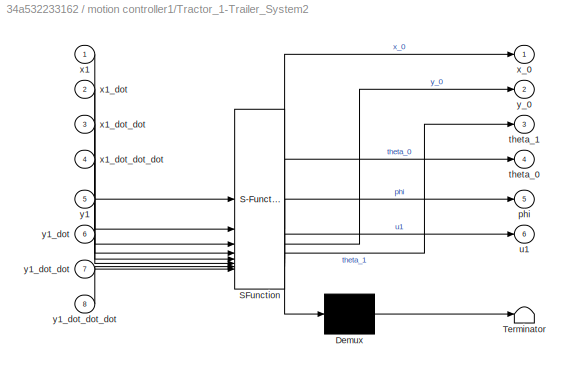
BLOCK [SubSystem] motion controller1/Tractor_1-Trailer_System2
  ErrorFcn = Stateflow.Translate.translate
  PermitHierarchicalResolution = ExplicitOnly
  SFBlockType = MATLAB Function
  TreatAsAtomicUnit = on
BLOCK [Demux] motion controller1/Tractor_1-Trailer_System2/ Demux 
  Outputs = 1
BLOCK [S-Function] motion controller1/Tractor_1-Trailer_System2/ SFunction 
  EnableBusSupport = on
  FunctionName = sf_sfun
  Parameters = d0,d1,for_back
  PortCounts = [8 7]
  SFcnIsStateOwnerBlock = off
  SFunctionDeploymentMode = off
  Tag = Stateflow S-Function 2
BLOCK [Terminator] motion controller1/Tractor_1-Trailer_System2/ Terminator 
BLOCK [Outport] motion controller1/Tractor_1-Trailer_System2/phi
  Port = 5
BLOCK [Outport] motion controller1/Tractor_1-Trailer_System2/theta_0
  Port = 4
BLOCK [Outport] motion controller1/Tractor_1-Trailer_System2/theta_1
  Port = 3
BLOCK [Outport] motion controller1/Tractor_1-Trailer_System2/u1
  Port = 6
BLOCK [Inport] motion controller1/Tractor_1-Trailer_System2/x1
BLOCK [Inport] motion controller1/Tractor_1-Trailer_System2/x1_dot
  Port = 2
BLOCK [Inport] motion controller1/Tractor_1-Trailer_System2/x1_dot_dot
  Port = 3
BLOCK [Inport] motion controller1/Tractor_1-Trailer_System2/x1_dot_dot_dot
  Port = 4
BLOCK [Outport] motion controller1/Tractor_1-Trailer_System2/x_0
BLOCK [Inport] motion controller1/Tractor_1-Trailer_System2/y1
  Port = 5
BLOCK [Inport] motion controller1/Tractor_1-Trailer_System2/y1_dot
  Port = 6
BLOCK [Inport] motion controller1/Tractor_1-Trailer_System2/y1_dot_dot
  Port = 7
BLOCK [Inport] motion controller1/Tractor_1-Trailer_System2/y1_dot_dot_dot
  Port = 8
BLOCK [Outport] motion controller1/Tractor_1-Trailer_System2/y_0
  Port = 2
BLOCK [Outport] motion controller1/phi
  Port = 2
BLOCK [Outport] motion controller1/theta0
  Port = 4
BLOCK [Outport] motion controller1/u1
BLOCK [Outport] motion controller1/x0 y0 theta1
  Port = 3
BLOCK [Inport] motion controller1/x1
BLOCK [Inport] motion controller1/x1_dot
  Port = 2
BLOCK [Inport] motion controller1/x1_dot_dot
  Port = 3
BLOCK [Inport] motion controller1/x1_dot_dot_dot
  Port = 4
BLOCK [Inport] motion controller1/y1
  Port = 5
BLOCK [Inport] motion controller1/y1_dot
  Port = 6
BLOCK [Inport] motion controller1/y1_dot_dot
  Port = 7
BLOCK [Inport] motion controller1/y1_dot_dot_dot
  Port = 8
BLOCK [Mux] path
  DisplayOption = bar
  Inputs = 2
  NameLocation = right
BLOCK [SubSystem] path_planning
BLOCK [SubSystem] path_planning/Cosinus Parking
  ErrorFcn = Stateflow.Translate.translate
  LibrarySourceBlock = simulink/User-Defined\nFunctions/MATLAB Function
  PermitHierarchicalResolution = ExplicitOnly
  SFBlockType = MATLAB Function
  TreatAsAtomicUnit = on
BLOCK [Demux] path_planning/Cosinus Parking/ Demux 
  Outputs = 1
BLOCK [S-Function] path_planning/Cosinus Parking/ SFunction 
  EnableBusSupport = on
  FunctionName = sf_sfun
  PortCounts = [1 2]
  SFcnIsStateOwnerBlock = off
  SFunctionDeploymentMode = off
  Tag = Stateflow S-Function 13
BLOCK [Terminator] path_planning/Cosinus Parking/ Terminator 
BLOCK [Outport] path_planning/Cosinus Parking/out_cos
BLOCK [Inport] path_planning/Cosinus Parking/t
BLOCK [Demux] path_planning/Demux
  Outputs = 8
BLOCK [ManualSwitch] path_planning/Manual Switch10
BLOCK [ManualSwitch] path_planning/Manual Switch6
  CurrentSetting = 0
BLOCK [ManualSwitch] path_planning/Manual Switch9
  CurrentSetting = 0
BLOCK [Scope] path_planning/Scope
  Floating = off
  NumInputPorts = 2
  ScopeSpecificationString = Simulink.scopes.TimeScopeBlockCfg('CurrentConfiguration', extmgr.ConfigurationSet(extmgr.Configuration('Core','General UI',true),extmgr.Configuration('Core','Source UI',true),extmgr.Configuration('Sources','WiredSimulink',true,'DataLoggingVariableName','ScopeData1'),extmgr.Configuration('Visuals','Time Domain',true,'SerializedDisplays',{struct('MinYLimReal','-22.04683','MaxYLimReal','7.55095','YLa...<+1450ch>
BLOCK [Scope] path_planning/Scope1
  Floating = off
  NameLocation = left
  NumInputPorts = 2
  ScopeSpecificationString = Simulink.scopes.TimeScopeBlockCfg('CurrentConfiguration', extmgr.ConfigurationSet(extmgr.Configuration('Core','General UI',true),extmgr.Configuration('Core','Source UI',true),extmgr.Configuration('Sources','WiredSimulink',true,'DataLoggingVariableName','ScopeData1'),extmgr.Configuration('Visuals','Time Domain',true,'SerializedDisplays',{struct('MinYLimReal','-2.5','MaxYLimReal','2.5','YLabelReal',...<+1396ch>
BLOCK [SubSystem] path_planning/circle
  ErrorFcn = Stateflow.Translate.translate
  LibrarySourceBlock = simulink/User-Defined\nFunctions/MATLAB Function
  PermitHierarchicalResolution = ExplicitOnly
  SFBlockType = MATLAB Function
  TreatAsAtomicUnit = on
BLOCK [Demux] path_planning/circle/ Demux 
  Outputs = 1
BLOCK [S-Function] path_planning/circle/ SFunction 
  EnableBusSupport = on
  FunctionName = sf_sfun
  PortCounts = [1 2]
  SFcnIsStateOwnerBlock = off
  SFunctionDeploymentMode = off
  Tag = Stateflow S-Function 9
BLOCK [Terminator] path_planning/circle/ Terminator 
BLOCK [Outport] path_planning/circle/out_cir
BLOCK [Inport] path_planning/circle/t
BLOCK [SubSystem] path_planning/exponential
  ErrorFcn = Stateflow.Translate.translate
  LibrarySourceBlock = simulink/User-Defined\nFunctions/MATLAB Function
  PermitHierarchicalResolution = ExplicitOnly
  SFBlockType = MATLAB Function
  TreatAsAtomicUnit = on
BLOCK [Demux] path_planning/exponential/ Demux 
  Outputs = 1
BLOCK [S-Function] path_planning/exponential/ SFunction 
  EnableBusSupport = on
  FunctionName = sf_sfun
  Parameters = dedel,del,ti_mod
  PortCounts = [1 2]
  SFcnIsStateOwnerBlock = off
  SFunctionDeploymentMode = off
  Tag = Stateflow S-Function 21
BLOCK [Terminator] path_planning/exponential/ Terminator 
BLOCK [Outport] path_planning/exponential/out_exp
BLOCK [Inport] path_planning/exponential/t
BLOCK [Inport] path_planning/time
BLOCK [SubSystem] path_planning/waving upward
  ErrorFcn = Stateflow.Translate.translate
  LibrarySourceBlock = simulink/User-Defined\nFunctions/MATLAB Function
  PermitHierarchicalResolution = ExplicitOnly
  SFBlockType = MATLAB Function
  TreatAsAtomicUnit = on
BLOCK [Demux] path_planning/waving upward/ Demux 
  Outputs = 1
BLOCK [S-Function] path_planning/waving upward/ SFunction 
  EnableBusSupport = on
  FunctionName = sf_sfun
  PortCounts = [1 2]
  SFcnIsStateOwnerBlock = off
  SFunctionDeploymentMode = off
  Tag = Stateflow S-Function 17
BLOCK [Terminator] path_planning/waving upward/ Terminator 
BLOCK [Outport] path_planning/waving upward/out_wav
BLOCK [Inport] path_planning/waving upward/t
BLOCK [SubSystem] path_planning/waving upward1
  ErrorFcn = Stateflow.Translate.translate
  LibrarySourceBlock = simulink/User-Defined\nFunctions/MATLAB Function
  PermitHierarchicalResolution = ExplicitOnly
  SFBlockType = MATLAB Function
  TreatAsAtomicUnit = on
BLOCK [Demux] path_planning/waving upward1/ Demux 
  Outputs = 1
BLOCK [S-Function] path_planning/waving upward1/ SFunction 
  EnableBusSupport = on
  FunctionName = sf_sfun
  PortCounts = [1 2]
  SFcnIsStateOwnerBlock = off
  SFunctionDeploymentMode = off
  Tag = Stateflow S-Function 8
BLOCK [Terminator] path_planning/waving upward1/ Terminator 
BLOCK [Outport] path_planning/waving upward1/out_wav
BLOCK [Inport] path_planning/waving upward1/t
BLOCK [Outport] path_planning/x1
BLOCK [Outport] path_planning/x1_dot
  Port = 2
BLOCK [Outport] path_planning/x1_dot_dot
  Port = 3
BLOCK [Outport] path_planning/x1_dot_dot_dot
  Port = 4
BLOCK [Outport] path_planning/y1
  Port = 5
BLOCK [Outport] path_planning/y1_dot
  Port = 6
BLOCK [Outport] path_planning/y1_dot_dot_dot
  Port = 8
BLOCK [Outport] path_planning/y_dot_dot
  Port = 7
NET Clock1:1 -> Goto2:1, path_planning:1
LINE Demux:1 -> Mux4:1
LINE Demux:2 -> Mux4:2
LINE Demux:3 -> Mux4:3
LINE Demux:4 -> Mux4:5
LINE Demux:5 -> Mux4:6
LINE Demux:6 -> Mux4:7
LINE From14:1 -> Mux3:5
LINE From15:1 -> Mux3:6
LINE From17:1 -> Plant with phi1:3
LINE From18:1 -> motion controller1:1
LINE From19:1 -> motion controller1:2
LINE From1:1 -> Mux4:8
LINE From20:1 -> motion controller1:5
LINE From21:1 -> motion controller1:6
LINE From22:1 -> motion controller1:3
LINE From23:1 -> motion controller1:4
LINE From24:1 -> motion controller1:7
LINE From25:1 -> motion controller1:8
LINE From2:1 -> Mux3:4
LINE From3:1 -> Mux4:4
LINE From4:1 -> Mux3:8
LINE From5:1 -> Plant with phi:3
LINE From6:1 -> motion controller:1
LINE From7:1 -> motion controller:2
LINE From8:1 -> motion controller:3
LINE From9:1 -> motion controller:4
NET Manual Switch1:1 -> Demux:1, Manual Switch:2
NET Manual Switch2:1 -> Animation function1:1, To Workspace:1
LINE Manual Switch:1 -> Animation function:1
LINE Mux2:1 -> Manual Switch1:2
NET Mux3:1 -> Manual Switch2:1, Selector8:1
LINE Mux4:1 -> Manual Switch2:2
LINE Mux:1 -> Manual Switch1:1
NET Plant with phi/Integrator1:1 -> Plant with phi/Selector3:1, Plant with phi/Selector4:1, Plant with phi/Tractor_1-Trailer_System4:1
NET Plant with phi/MATLAB Function:1 -> Plant with phi/Scope:2, Plant with phi/Tractor_1-Trailer_System3:1, Plant with phi/Tractor_1-Trailer_System4:2, Plant with phi/u1_used1:1
NET Plant with phi/MATLAB Function:2 -> Plant with phi/Scope1:2, Plant with phi/Tractor_1-Trailer_System3:2, Plant with phi/phi_used:1
LINE Plant with phi/Selector3:1 -> Plant with phi/Tractor_1-Trailer_System3:3
LINE Plant with phi/Selector4:1 -> Plant with phi/car_path:1
LINE Plant with phi/Tractor_1-Trailer_System3:1 -> Plant with phi/Integrator1:1
LINE Plant with phi/Tractor_1-Trailer_System4:1 -> Plant with phi/trailer_path:1
NET Plant with phi/phi:1 -> Plant with phi/MATLAB Function:3, Plant with phi/Scope1:1
LINE Plant with phi/t:1 -> Plant with phi/MATLAB Function:1
NET Plant with phi/u1:1 -> Plant with phi/MATLAB Function:2, Plant with phi/Scope:1
NET Plant with phi1/Integrator1:1 -> Plant with phi1/Selector3:1, Plant with phi1/Selector4:1, Plant with phi1/Tractor_1-Trailer_System4:1
NET Plant with phi1/MATLAB Function:1 -> Plant with phi1/Scope:2, Plant with phi1/Tractor_1-Trailer_System3:1, Plant with phi1/Tractor_1-Trailer_System4:2, Plant with phi1/u1_used1:1
NET Plant with phi1/MATLAB Function:2 -> Plant with phi1/Scope1:2, Plant with phi1/Tractor_1-Trailer_System3:2, Plant with phi1/phi_used:1
LINE Plant with phi1/Selector3:1 -> Plant with phi1/Tractor_1-Trailer_System3:3
LINE Plant with phi1/Selector4:1 -> Plant with phi1/car_path:1
LINE Plant with phi1/Tractor_1-Trailer_System3:1 -> Plant with phi1/Integrator1:1
LINE Plant with phi1/Tractor_1-Trailer_System4:1 -> Plant with phi1/trailer_path:1
NET Plant with phi1/phi:1 -> Plant with phi1/MATLAB Function:3, Plant with phi1/Scope1:1
LINE Plant with phi1/t:1 -> Plant with phi1/MATLAB Function:1
NET Plant with phi1/u1:1 -> Plant with phi1/MATLAB Function:2, Plant with phi1/Scope:1
NET Plant with phi1:1 -> Selector4:1, Selector5:1, Selector6:1, To Workspace3:1
NET Plant with phi1:2 -> Selector17:1, Selector18:1, Selector7:1, To Workspace4:1
LINE Plant with phi1:3 -> Goto10:1
LINE Plant with phi1:4 -> Goto11:1
NET Plant with phi:1 -> Selector11:1, Selector12:1, Selector13:1, To Workspace2:1
NET Plant with phi:2 -> Selector14:1, Selector15:1, Selector16:1, To Workspace5:1
LINE Plant with phi:3 -> Goto8:1
LINE Plant with phi:4 -> Goto9:1
LINE Selector11:1 -> Mux:3
LINE Selector12:1 -> Mux:1
LINE Selector13:1 -> Mux:2
LINE Selector14:1 -> Mux:6
LINE Selector15:1 -> Mux:4
LINE Selector16:1 -> Mux:5
LINE Selector17:1 -> Mux2:4
LINE Selector18:1 -> Mux2:5
LINE Selector1:1 -> Mux3:7
LINE Selector2:1 -> Mux3:1
LINE Selector3:1 -> Mux3:2
LINE Selector4:1 -> Mux2:3
LINE Selector5:1 -> Mux2:1
LINE Selector6:1 -> Mux2:2
LINE Selector7:1 -> Mux2:6
LINE Selector8:1 -> Manual Switch:1
NET motion controller/Add:1 -> motion controller/Scope2:1, motion controller/To Workspace2:1, motion controller/Tractor_1-Trailer_System5:2, motion controller/Transfer Fcn1:1, motion controller/theta0:1
LINE motion controller/Constant:1 -> motion controller/Add:2
LINE motion controller/Delay One Step:1 -> motion controller/MATLAB Function:2
LINE motion controller/Demux:1 -> motion controller/Transfer Fcn15:1
LINE motion controller/Demux:2 -> motion controller/Transfer Fcn16:1
LINE motion controller/MATLAB Function:1 -> motion controller/Transfer Fcn4:1
LINE motion controller/MATLAB Function:2 -> motion controller/Delay One Step:1
LINE motion controller/Selector2:1 -> motion controller/Demux:1
NET motion controller/Tractor_1-Trailer_System2:1 -> motion controller/Scope:1, motion controller/Selector2:1, motion controller/To Workspace9:1, motion controller/x0 y0 theta1:1
LINE motion controller/Tractor_1-Trailer_System5:1 -> motion controller/u1:1
LINE motion controller/Tractor_1-Trailer_System5:2 -> motion controller/phi:1
NET motion controller/Transfer Fcn15:1 -> motion controller/Tractor_1-Trailer_System5:1, motion controller/Trigonometric Function4:2
LINE motion controller/Transfer Fcn16:1 -> motion controller/Trigonometric Function4:1
NET motion controller/Transfer Fcn1:1 -> motion controller/Scope3:1, motion controller/Tractor_1-Trailer_System5:3
LINE motion controller/Transfer Fcn4:1 -> motion controller/Saturation1:1
LINE motion controller/Trigonometric Function4:1 -> motion controller/Add:1
NET motion controller/x1:1 -> motion controller/Scope1:1, motion controller/Tractor_1-Trailer_System2:1
LINE motion controller/x1_dot:1 -> motion controller/Tractor_1-Trailer_System2:2
NET motion controller/y1:1 -> motion controller/Scope1:2, motion controller/Tractor_1-Trailer_System2:4
LINE motion controller/y1_dot:1 -> motion controller/Tractor_1-Trailer_System2:3
NET motion controller1/Mux:1 -> motion controller1/To Workspace9:1, motion controller1/x0 y0 theta1:1
LINE motion controller1/Tractor_1-Trailer_System2:1 -> motion controller1/Mux:1
LINE motion controller1/Tractor_1-Trailer_System2:2 -> motion controller1/Mux:2
LINE motion controller1/Tractor_1-Trailer_System2:3 -> motion controller1/Mux:3
NET motion controller1/Tractor_1-Trailer_System2:4 -> motion controller1/To Workspace2:1, motion controller1/theta0:1
LINE motion controller1/Tractor_1-Trailer_System2:5 -> motion controller1/phi:1
LINE motion controller1/Tractor_1-Trailer_System2:6 -> motion controller1/u1:1
NET motion controller1/x1:1 -> motion controller1/Scope1:1, motion controller1/Tractor_1-Trailer_System2:1
LINE motion controller1/x1_dot:1 -> motion controller1/Tractor_1-Trailer_System2:2
LINE motion controller1/x1_dot_dot:1 -> motion controller1/Tractor_1-Trailer_System2:3
LINE motion controller1/x1_dot_dot_dot:1 -> motion controller1/Tractor_1-Trailer_System2:4
NET motion controller1/y1:1 -> motion controller1/Scope1:2, motion controller1/Tractor_1-Trailer_System2:5
LINE motion controller1/y1_dot:1 -> motion controller1/Tractor_1-Trailer_System2:6
LINE motion controller1/y1_dot_dot:1 -> motion controller1/Tractor_1-Trailer_System2:7
LINE motion controller1/y1_dot_dot_dot:1 -> motion controller1/Tractor_1-Trailer_System2:8
NET motion controller1:1 -> Plant with phi1:1, Scope5:1
NET motion controller1:2 -> Plant with phi1:2, Scope6:1
NET motion controller1:3 -> Goto16:1, Scope3:1
NET motion controller1:4 -> Goto17:1, Scope4:1
NET motion controller:1 -> Plant with phi:1, Scope:1
NET motion controller:2 -> Goto1:1, Plant with phi:2, Scope19:1
NET motion controller:3 -> Scope1:1, Selector1:1, Selector2:1, Selector3:1
NET motion controller:4 -> Mux3:3, Scope2:1
LINE path:1 -> Goto4:1
LINE path_planning/Cosinus Parking:1 -> path_planning/Manual Switch10:1
NET path_planning/Demux:1 -> path_planning/Scope:1, path_planning/x1:1
NET path_planning/Demux:2 -> path_planning/Scope1:1, path_planning/x1_dot:1
LINE path_planning/Demux:3 -> path_planning/x1_dot_dot:1
LINE path_planning/Demux:4 -> path_planning/x1_dot_dot_dot:1
NET path_planning/Demux:5 -> path_planning/Scope:2, path_planning/y1:1
NET path_planning/Demux:6 -> path_planning/Scope1:2, path_planning/y1_dot:1
LINE path_planning/Demux:7 -> path_planning/y_dot_dot:1
LINE path_planning/Demux:8 -> path_planning/y1_dot_dot_dot:1
LINE path_planning/Manual Switch6:1 -> path_planning/Manual Switch9:2
LINE path_planning/Manual Switch9:1 -> path_planning/Demux:1
LINE path_planning/exponential:1 -> path_planning/Manual Switch10:2
NET path_planning/time:1 -> path_planning/Cosinus Parking:1, path_planning/exponential:1, path_planning/waving upward1:1, path_planning/waving upward:1
LINE path_planning/waving upward1:1 -> path_planning/Manual Switch6:1
LINE path_planning/waving upward:1 -> path_planning/Manual Switch6:2
NET path_planning:1 -> Goto3:1, To Workspace7:1, path:1
LINE path_planning:2 -> Goto5:1
LINE path_planning:3 -> Goto12:1
LINE path_planning:4 -> Goto13:1
NET path_planning:5 -> Goto6:1, To Workspace6:1, path:2
LINE path_planning:6 -> Goto7:1
LINE path_planning:7 -> Goto14:1
LINE path_planning:8 -> Goto15:1
note: NET lines group one-source signal fan-out (src -> all destinations, sorted); 1:1 wires keep LINE
CHART Plant with phi/Tractor_1-Trailer_System4 states=1 transitions=1
  STATE_LABEL 'eML_blk_kernel()'
  STATE_LABEL 'SCRIPT:\nfunction trailer= fcn(car,d1,u1,for_back)\n\ntrailer = [car(1) - sign(u1)*d1*cos(car(4));car(2) - sign(u1)*d1*sin(car(4));car(4)+for_back];\n'
CHART Plant with phi/MATLAB Function states=1 transitions=1
  STATE_LABEL 'eML_blk_kernel()'
  STATE_LABEL 'SCRIPT:\nfunction [x,y]= fcn(t,u1,phi,del, dedel, for_back)\nif t<del-dedel\n    if for_back == 0\n        x=2;\n    else\n        x=-2;\n    end\n    y=for_back;\nelse\n    x=u1;\n    y=phi;\nend\n\n'
CHART Plant with phi1/Tractor_1-Trailer_System4 states=1 transitions=1
  STATE_LABEL 'eML_blk_kernel()'
  STATE_LABEL 'SCRIPT:\nfunction trailer= fcn(car,d1,u1,for_back)\n\ntrailer = [car(1) - sign(u1)*d1*cos(car(4));car(2) - sign(u1)*d1*sin(car(4));car(4)+for_back];\n'
CHART path_planning/waving upward1 states=1 transitions=1
  STATE_LABEL 'eML_blk_kernel()'
  STATE_LABEL 'SCRIPT:\nfunction out_wav = fcn(t)\nif t<0\n    dddy=0;\n    ddy=0;\n    dy=0;\n    y=0;\n    x=2*t;\n    dx=sqrt(4-dy^2);\n    ddx=0;\n    dddx=0;\nelse\ndddy=-cos(t);\nddy=-sin(t);\ndy=cos(t)-1;\ny=sin(t) - t;\n% x=sqrt(4*t-y^2);\nx=sqrt(4*cos(t) - cos(2*t) + 5)*sec(t/2)*(2*asinh(sin(t/2)) + sin(t/2)* sqrt(6 - 2*cos(t)))/(2*sqrt(3 - cos(t)));\n\ndx=sqrt(4-dy^2);\n% ddx=sin(t);\nddx=(sin(t)*(cos(t) - 1))/sqrt(4 - (co...<+166ch>'
CHART path_planning/circle states=1 transitions=1
  STATE_LABEL 'eML_blk_kernel()'
  STATE_LABEL 'SCRIPT:\nfunction out_cir= fcn(t)\nif t<=1\n    dx=3;\n    x = 3*t;\n    dy=0;\n    y=0;\nelse\ndy=-3*sin(t-1);\ndx=3*cos(t-1);\nx= 3 * sin(t-1) + 3;\ny = 3*cos(t-1) - 3;\nend\nout_cir=[x,dx,y,dy];\n\n'
CHART motion controller/Tractor_1-Trailer_System2 states=1 transitions=1
  STATE_LABEL 'eML_blk_kernel()'
  STATE_LABEL 'SCRIPT:\nfunction out = fcn(x1,x1_dot, y1_dot, y1, d1,for_back)\n%% Trying to approximate tangente function with Leonhard Euler and then taylor series \n% the11=0;\n% for n = 0:100\n%     if n==0\n%         the11=1*(y1_dot/x1_dot)/(1+(y1_dot/x1_dot));\n%     else\n%         prod=1;\n%         for k = 1:n\n%             prod=2*k*((y1_dot/x1_dot)^2)/((2*k+1)*(1+(y1_dot/x1_dot)^2));\n%         end\n%         the...<+366ch>'
CHART path_planning/Cosinus Parking states=1 transitions=1
  STATE_LABEL 'eML_blk_kernel()'
  STATE_LABEL 'SCRIPT:\nfunction out_cos = fcn(t)\nif t<pi | t > 3*pi \n    x=2*t;\n    y=0;\n    dx=2;\n    dy=0;\nelse\n    x=2*t;\n    y=cos(t)-cos(pi);\n    dx=2;\n    dy=-sin(t);\nend\nout_cos=[x, dx, y, dy];\n\n%% tring to fix the jumps\n% function out_cos = fcn(t)\n% if t<pi | t > 3*pi \n%     x=2*t;\n%     y=0;\n%     dy=0;\n%     dx=2;\n% else\n%     y=cos(t)-cos(pi);\n%     x=sqrt(4*t^2-y^2);\n%     dy=-sin(t);\n%     dx=sqrt(4...<+39ch>'
CHART motion controller/Tractor_1-Trailer_System5 states=1 transitions=1
  STATE_LABEL 'eML_blk_kernel()'
  STATE_LABEL 'SCRIPT:\nfunction [u1, phi]= fcn(x0_dot, theta0, theta0_dot, d0)\nu1 = x0_dot/(cos(theta0));\nphi = atan2(d0*theta0_dot,u1);\n'
CHART motion controller/MATLAB Function states=1 transitions=1
  STATE_LABEL 'eML_blk_kernel()'
  STATE_LABEL 'SCRIPT:\nfunction [theta0,co]= fcn(the,co)\nif u < -pi+0.005\n    co = co + 2*pi;\nend\ntheta0 = the - co;\n\n'
CHART path_planning/waving upward states=1 transitions=1
  STATE_LABEL 'eML_blk_kernel()'
  STATE_LABEL 'SCRIPT:\nfunction out_wav = fcn(t)\nif t<0\n    dddy=0;\n    ddy=0;\n    dy=0;\n    y=0;\n    x=2*t;\n    dx=sqrt(4-dy^2);\n    ddx=0;\n    dddx=0;\nelse\ndddy=-cos(t);\nddy=-sin(t);\ndy=cos(t)-1;\ny=sin(t) - t;\n% x=sqrt(4*t-y^2);\nx=sqrt(4*cos(t) - cos(2*t) + 5)*sec(t/2)*(2*asinh(sin(t/2)) + sin(t/2)* sqrt(6 - 2*cos(t)))/(2*sqrt(3 - cos(t)));\n\ndx=sqrt(4-dy^2);\n% ddx=sin(t);\nddx=(sin(t)*(cos(t) - 1))/sqrt(4 - (co...<+166ch>'
CHART path_planning/exponential states=1 transitions=1
  STATE_LABEL 'eML_blk_kernel()'
  STATE_LABEL 'SCRIPT:\n% function out_exp = fcn(t,ti_mod)\n% if t<3\n%     y=exp(t*ti_mod)-1;\n% %     y=exp(t-6);\n%     x=2*t;\n%     dx=2;\n%     dy=ti_mod*exp(t*ti_mod);\n% %     dy=exp(t-6);\n% else\n% %     y=exp(ti_mod*t+3*(1-ti_mod)-2);\n%     y=exp(t*ti_mod)-1;\n%     x=2*t;\n%     dx=2;\n%     dy=ti_mod*exp(t*ti_mod);\n% %     dy=ti_mod*exp(ti_mod*t-6);\n% end\n% out_exp=[x,dx,y,dy];\n\nfunction out_exp = fcn(t,ti_mod,d...<+292ch>'
CHART Plant with phi1/MATLAB Function states=1 transitions=1
  STATE_LABEL 'eML_blk_kernel()'
  STATE_LABEL 'SCRIPT:\nfunction [x,y]= fcn(t,u1,phi,del, dedel, for_back)\nif t<del-dedel\n    if for_back == 0\n        x=2;\n    else\n        x=-2;\n    end\n    y=for_back;\nelse\n    x=u1;\n    y=phi;\nend\n\n'
CHART motion controller1/Tractor_1-Trailer_System2 states=1 transitions=1
  STATE_LABEL 'eML_blk_kernel()'
  STATE_LABEL 'SCRIPT:\nfunction [x_0, y_0, theta_1, theta_0, phi,u1] = fcn(x1, x1_dot, x1_dot_dot, x1_dot_dot_dot, y1, y1_dot, y1_dot_dot, y1_dot_dot_dot, d1,for_back, d0)\n\ntheta_1 = atan2(y1_dot,x1_dot)-for_back;\n \n \ny_0 = y1 + (d1*y1_dot)/((y1_dot^2/x1_dot^2 + 1)^(1/2)*x1_dot);\n \n \nx_0 = x1 + d1/(y1_dot^2/x1_dot^2 + 1)^(1/2);\n \n \ntheta_0 = for_back + atan2((d1*x1_dot^2*y1_dot_dot + ((x1_dot^2 + y1_dot^2)/x1_do...<+2498ch>'
CHART Plant with phi1/Tractor_1-Trailer_System3 states=1 transitions=1
  STATE_LABEL 'eML_blk_kernel()'
  STATE_LABEL 'SCRIPT:\nfunction out = fcn(u1, phii, in, a, b, d0, d1)\n\nphi = phii;\ntheta0 = in(1);\ntheta1 = in(2);\n\nx0_dot = cos(theta0)*u1;\ny0_dot = sin(theta0)*u1;\n\ntheta0_dot = (1/d0)*tan(phi)*u1;\n%theta1_dot = (1/b)*((a/d0)*tan(phi)*cos(theta0 - theta1) - sin(theta0 - theta1))*u1;\n% theta1_dot = (1/d1)*cos(theta0 - theta1)*sin(theta0-theta1)*u1;\n% theta1_dot = (1/d1)*((a/d0)*tan(phi)*cos(theta0 - theta1) - s...<+127ch>'
CHART Plant with phi/Tractor_1-Trailer_System3 states=1 transitions=1
  STATE_LABEL 'eML_blk_kernel()'
  STATE_LABEL 'SCRIPT:\nfunction out = fcn(u1, phii, in, a, b, d0, d1)\n\nphi = phii;\ntheta0 = in(1);\ntheta1 = in(2);\n\nx0_dot = cos(theta0)*u1;\ny0_dot = sin(theta0)*u1;\n\ntheta0_dot = (1/d0)*tan(phi)*u1;\n%theta1_dot = (1/b)*((a/d0)*tan(phi)*cos(theta0 - theta1) - sin(theta0 - theta1))*u1;\n% theta1_dot = (1/d1)*cos(theta0 - theta1)*sin(theta0-theta1)*u1;\n% theta1_dot = (1/d1)*((a/d0)*tan(phi)*cos(theta0 - theta1) - s...<+127ch>'
CHART  states=0 transitions=0
CHART  states=0 transitions=0
CHART  states=0 transitions=0
CHART  states=0 transitions=0
CHART  states=0 transitions=0
CHART  states=0 transitions=0
CHART  states=0 transitions=0
CHART  states=0 transitions=0
CHART  states=0 transitions=0
CHART  states=0 transitions=0
CHART  states=0 transitions=0
CHART  states=0 transitions=0
CHART  states=0 transitions=0
CHART  states=0 transitions=0
CHART  states=0 transitions=0
